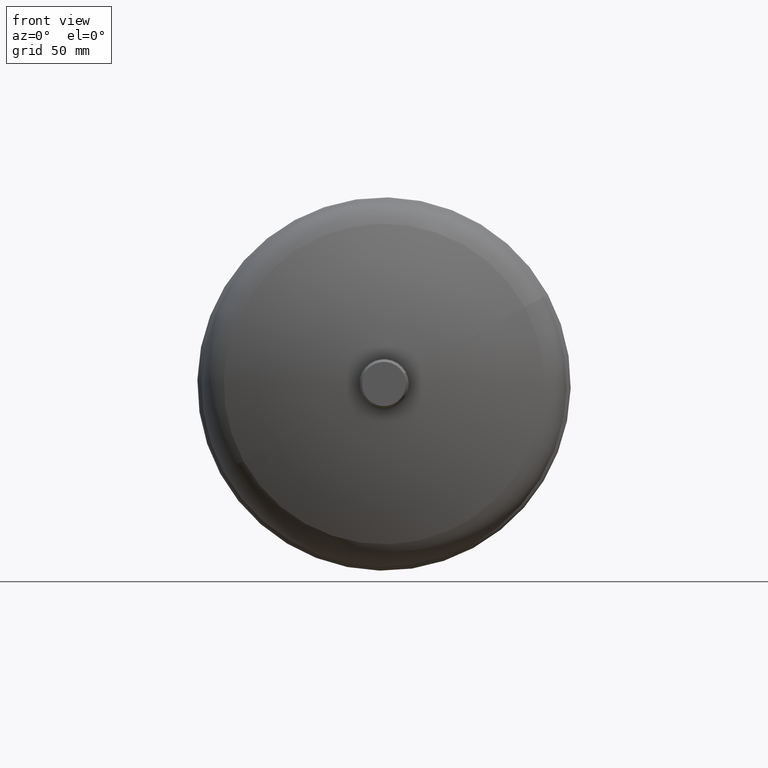
[diagram: clean part render]
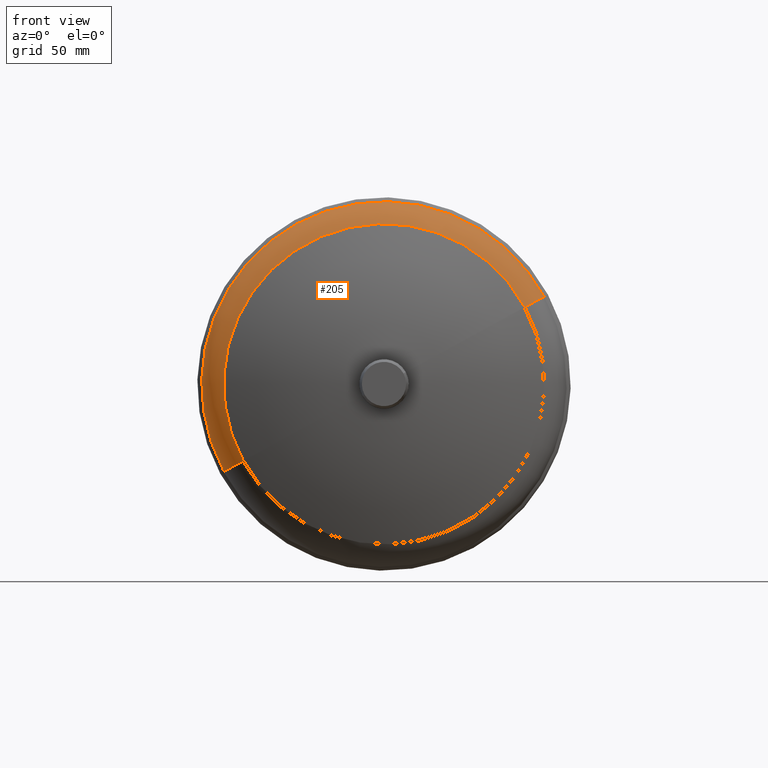
[diagram: same view with one face highlighted and labeled with its STEP entity id]
A machine part, front view. The second image highlights one B-rep face of the part: STEP entity #205.
In plain terms, the highlighted toroidal blend (fillet) surface has major radius 81 mm and minor (blend) radius 22 mm.
Its self-contained STEP definition (entity closure, byte-faithful):
#146=AXIS2_PLACEMENT_3D('Circle Axis2P3D',#144,#145,$) ;
#178=AXIS2_PLACEMENT_3D('Torus Axis2P3D',#175,#176,#177) ;
#182=AXIS2_PLACEMENT_3D('Circle Axis2P3D',#180,#181,$) ;
#189=AXIS2_PLACEMENT_3D('Circle Axis2P3D',#187,#188,$) ;
#196=AXIS2_PLACEMENT_3D('Circle Axis2P3D',#194,#195,$) ;
#141=CARTESIAN_POINT('Vertex',(79.4919946383,42.2874324459,43.4266745936)) ;
#144=CARTESIAN_POINT('Axis2P3D Location',(-2.84217094304E-014,42.2874324459,0.)) ;
#148=CARTESIAN_POINT('Vertex',(-79.4919946383,42.2874324459,-43.4266745936)) ;
#175=CARTESIAN_POINT('Axis2P3D Location',(0.,62.0917561731,0.)) ;
#180=CARTESIAN_POINT('Axis2P3D Location',(71.0841875131,62.0917561731,38.8334686269)) ;
#184=CARTESIAN_POINT('Vertex',(90.3910038747,62.0917561731,49.3808304762)) ;
#187=CARTESIAN_POINT('Axis2P3D Location',(0.,62.0917561731,0.)) ;
#191=CARTESIAN_POINT('Vertex',(-90.3910038747,62.0917561731,-49.3808304762)) ;
#194=CARTESIAN_POINT('Axis2P3D Location',(-71.0841875131,62.0917561731,-38.8334686269)) ;
#145=DIRECTION('Axis2P3D Direction',(0.,-1.,0.)) ;
#176=DIRECTION('Axis2P3D Direction',(0.,-1.,0.)) ;
#177=DIRECTION('Axis2P3D XDirection',(0.87758256189,0.,0.479425538604)) ;
#181=DIRECTION('Axis2P3D Direction',(0.479425538604,0.,-0.87758256189)) ;
#188=DIRECTION('Axis2P3D Direction',(0.,-1.,0.)) ;
#195=DIRECTION('Axis2P3D Direction',(-0.479425538604,0.,0.87758256189)) ;
#200=ORIENTED_EDGE('',*,*,#150,.F.) ;
#201=ORIENTED_EDGE('',*,*,#186,.T.) ;
#202=ORIENTED_EDGE('',*,*,#193,.T.) ;
#203=ORIENTED_EDGE('',*,*,#198,.F.) ;
#205=ADVANCED_FACE('Hauptk\X2\00F6\X0\rper',(#204),#179,.T.) ;
#147=CIRCLE('generated circle',#146,90.5806451613) ;
#183=CIRCLE('generated circle',#182,22.) ;
#190=CIRCLE('generated circle',#189,103.) ;
#197=CIRCLE('generated circle',#196,22.) ;
#179=TOROIDAL_SURFACE('homeo Torus',#178,81.,22.) ;
#150=EDGE_CURVE('',#142,#149,#147,.T.) ;
#186=EDGE_CURVE('',#142,#185,#183,.F.) ;
#193=EDGE_CURVE('',#185,#192,#190,.T.) ;
#198=EDGE_CURVE('',#149,#192,#197,.F.) ;
#199=EDGE_LOOP('',(#200,#201,#202,#203)) ;
#204=FACE_OUTER_BOUND('',#199,.T.) ;
#142=VERTEX_POINT('',#141) ;
#149=VERTEX_POINT('',#148) ;
#185=VERTEX_POINT('',#184) ;
#192=VERTEX_POINT('',#191) ;